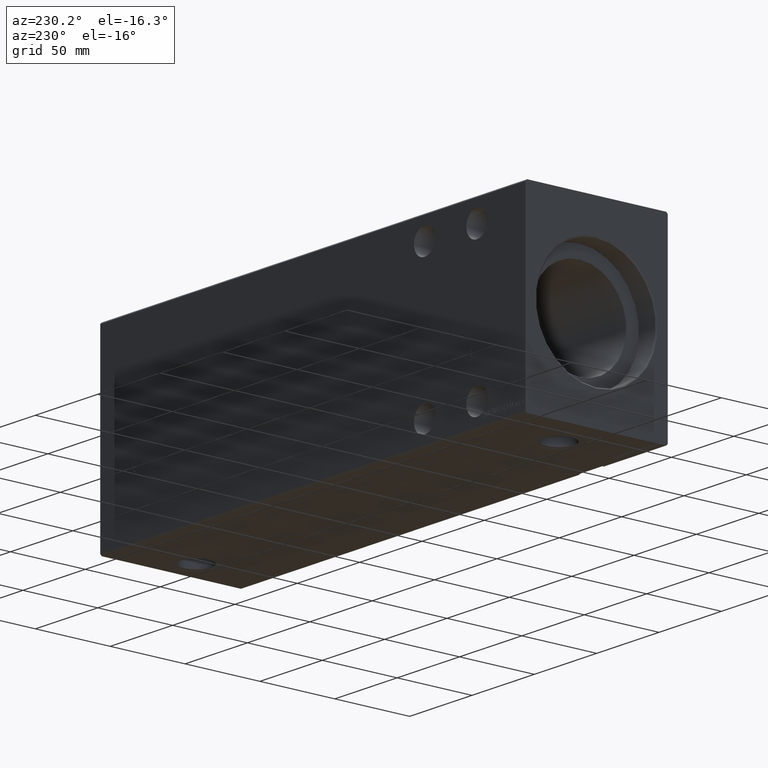
[diagram: clean part render]
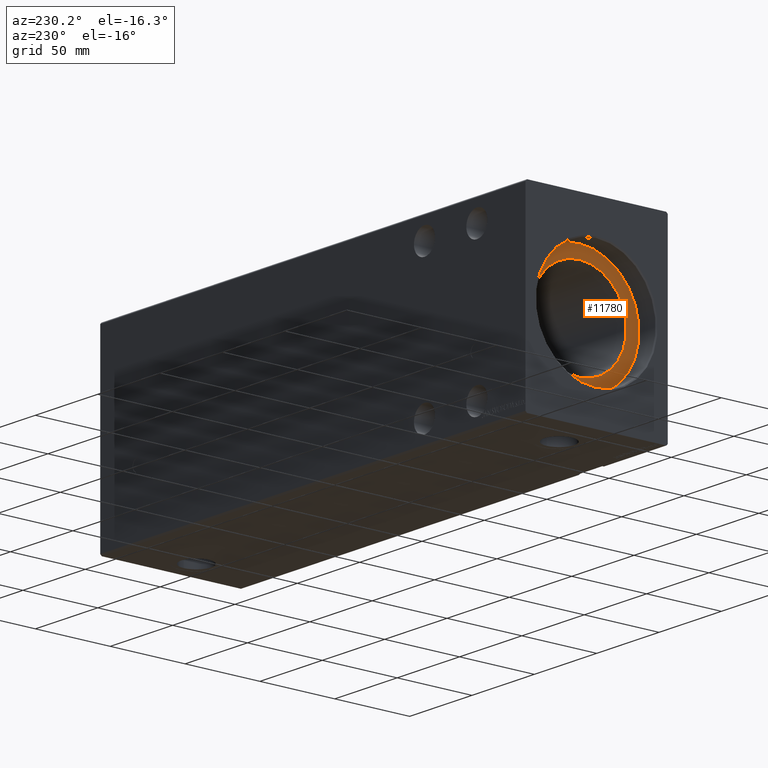
[diagram: same view with one face highlighted and labeled with its STEP entity id]
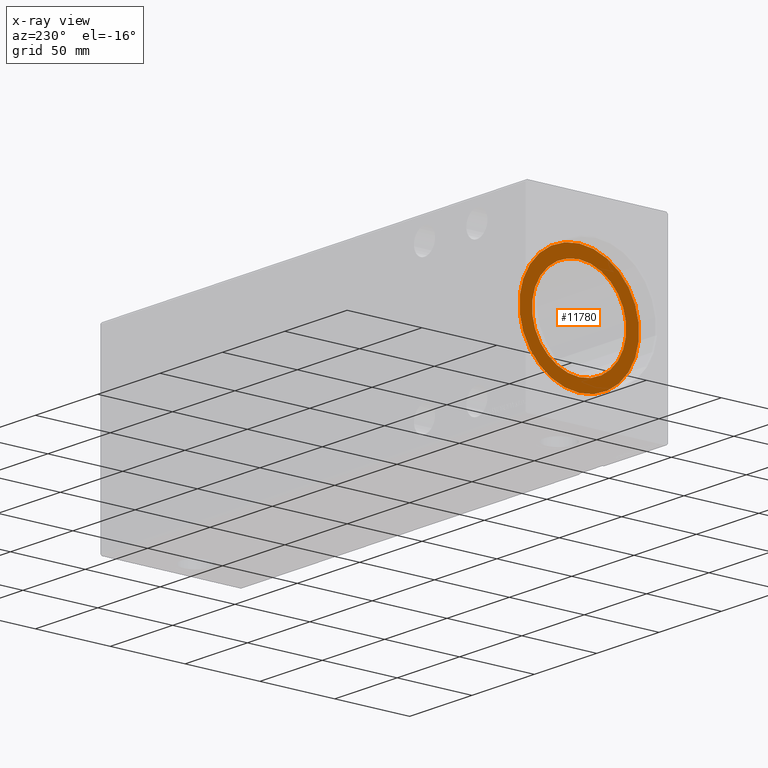
[diagram: x-ray of the same camera — body ghosted, the highlighted face saturated]
A machine part, auxiliary view. The second image highlights one B-rep face of the part: STEP entity #11780.
The next image is the same camera in x-ray: the body ghosted, the highlighted face saturated — about 0% of this face is hidden behind the body in this view.
In plain terms, the highlighted planar face has unit normal (-1, 0, 0).
Its self-contained STEP definition (entity closure, byte-faithful):
#943 = DIRECTION ( 'NONE',  ( 0.000000000000000000, 0.000000000000000000, 1.000000000000000000 ) ) ;
#1167 = DIRECTION ( 'NONE',  ( -1.000000000000000000, 0.000000000000000000, 0.000000000000000000 ) ) ;
#1356 = EDGE_LOOP ( 'NONE', ( #12557, #9799 ) ) ;
#1433 = DIRECTION ( 'NONE',  ( 0.000000000000000000, 0.000000000000000000, 1.000000000000000000 ) ) ;
#2073 = VERTEX_POINT ( 'NONE', #14027 ) ;
#2183 = FACE_BOUND ( 'NONE', #1356, .T. ) ;
#2404 = CARTESIAN_POINT ( 'NONE',  ( 14.00000000000000000, 0.000000000000000000, 40.00000000000000000 ) ) ;
#3009 = AXIS2_PLACEMENT_3D ( 'NONE', #7376, #23587, #4816 ) ;
#3529 = CIRCLE ( 'NONE', #28075, 31.50000000000000000 ) ;
#3984 = CARTESIAN_POINT ( 'NONE',  ( 14.00000000000001243, 3.857637417314162689E-15, -31.50000000000000000 ) ) ;
#4030 = VERTEX_POINT ( 'NONE', #3984 ) ;
#4816 = DIRECTION ( 'NONE',  ( 0.000000000000000000, 0.000000000000000000, 1.000000000000000000 ) ) ;
#6997 = EDGE_LOOP ( 'NONE', ( #10411, #23223 ) ) ;
#7376 = CARTESIAN_POINT ( 'NONE',  ( 14.00000000000001243, 0.000000000000000000, 0.000000000000000000 ) ) ;
#8158 = PLANE ( 'NONE',  #9022 ) ;
#8369 = DIRECTION ( 'NONE',  ( 0.000000000000000000, 0.000000000000000000, 1.000000000000000000 ) ) ;
#8854 = VERTEX_POINT ( 'NONE', #41386 ) ;
#9022 = AXIS2_PLACEMENT_3D ( 'NONE', #21169, #37586, #8369 ) ;
#9397 = EDGE_CURVE ( 'NONE', #4030, #8854, #3529, .T. ) ;
#9799 = ORIENTED_EDGE ( 'NONE', *, *, #9397, .F. ) ;
#10411 = ORIENTED_EDGE ( 'NONE', *, *, #17076, .T. ) ;
#11780 = ADVANCED_FACE ( 'NONE', ( #2183, #40583 ), #8158, .T. ) ;
#12450 = VERTEX_POINT ( 'NONE', #2404 ) ;
#12557 = ORIENTED_EDGE ( 'NONE', *, *, #16328, .F. ) ;
#14027 = CARTESIAN_POINT ( 'NONE',  ( 14.00000000000000000, 4.898587196589413026E-15, -40.00000000000000000 ) ) ;
#14510 = DIRECTION ( 'NONE',  ( 0.000000000000000000, 0.000000000000000000, 1.000000000000000000 ) ) ;
#16328 = EDGE_CURVE ( 'NONE', #8854, #4030, #21414, .T. ) ;
#16934 = CARTESIAN_POINT ( 'NONE',  ( 14.00000000000001243, 0.000000000000000000, 0.000000000000000000 ) ) ;
#17076 = EDGE_CURVE ( 'NONE', #12450, #2073, #38451, .T. ) ;
#18736 = AXIS2_PLACEMENT_3D ( 'NONE', #40243, #20849, #1433 ) ;
#20849 = DIRECTION ( 'NONE',  ( -1.000000000000000000, 0.000000000000000000, 0.000000000000000000 ) ) ;
#21169 = CARTESIAN_POINT ( 'NONE',  ( 14.00000000000000000, 0.000000000000000000, 0.000000000000000000 ) ) ;
#21414 = CIRCLE ( 'NONE', #3009, 31.50000000000000000 ) ;
#23223 = ORIENTED_EDGE ( 'NONE', *, *, #28879, .T. ) ;
#23587 = DIRECTION ( 'NONE',  ( -1.000000000000000000, 0.000000000000000000, 0.000000000000000000 ) ) ;
#24306 = DIRECTION ( 'NONE',  ( -1.000000000000000000, 0.000000000000000000, 0.000000000000000000 ) ) ;
#26932 = CIRCLE ( 'NONE', #18736, 40.00000000000000000 ) ;
#28075 = AXIS2_PLACEMENT_3D ( 'NONE', #16934, #1167, #943 ) ;
#28879 = EDGE_CURVE ( 'NONE', #2073, #12450, #26932, .T. ) ;
#32334 = AXIS2_PLACEMENT_3D ( 'NONE', #37529, #24306, #14510 ) ;
#37529 = CARTESIAN_POINT ( 'NONE',  ( 14.00000000000000000, 0.000000000000000000, 0.000000000000000000 ) ) ;
#37586 = DIRECTION ( 'NONE',  ( -1.000000000000000000, 0.000000000000000000, 0.000000000000000000 ) ) ;
#38451 = CIRCLE ( 'NONE', #32334, 40.00000000000000000 ) ;
#40243 = CARTESIAN_POINT ( 'NONE',  ( 14.00000000000000000, 0.000000000000000000, 0.000000000000000000 ) ) ;
#40583 = FACE_OUTER_BOUND ( 'NONE', #6997, .T. ) ;
#41386 = CARTESIAN_POINT ( 'NONE',  ( 14.00000000000001243, 0.000000000000000000, 31.50000000000000000 ) ) ;